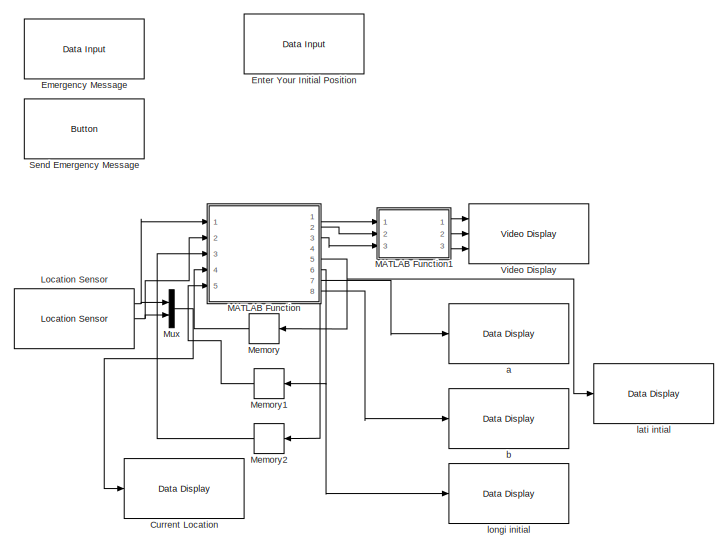
[diagram: root canvas - part 1/2, top left region]
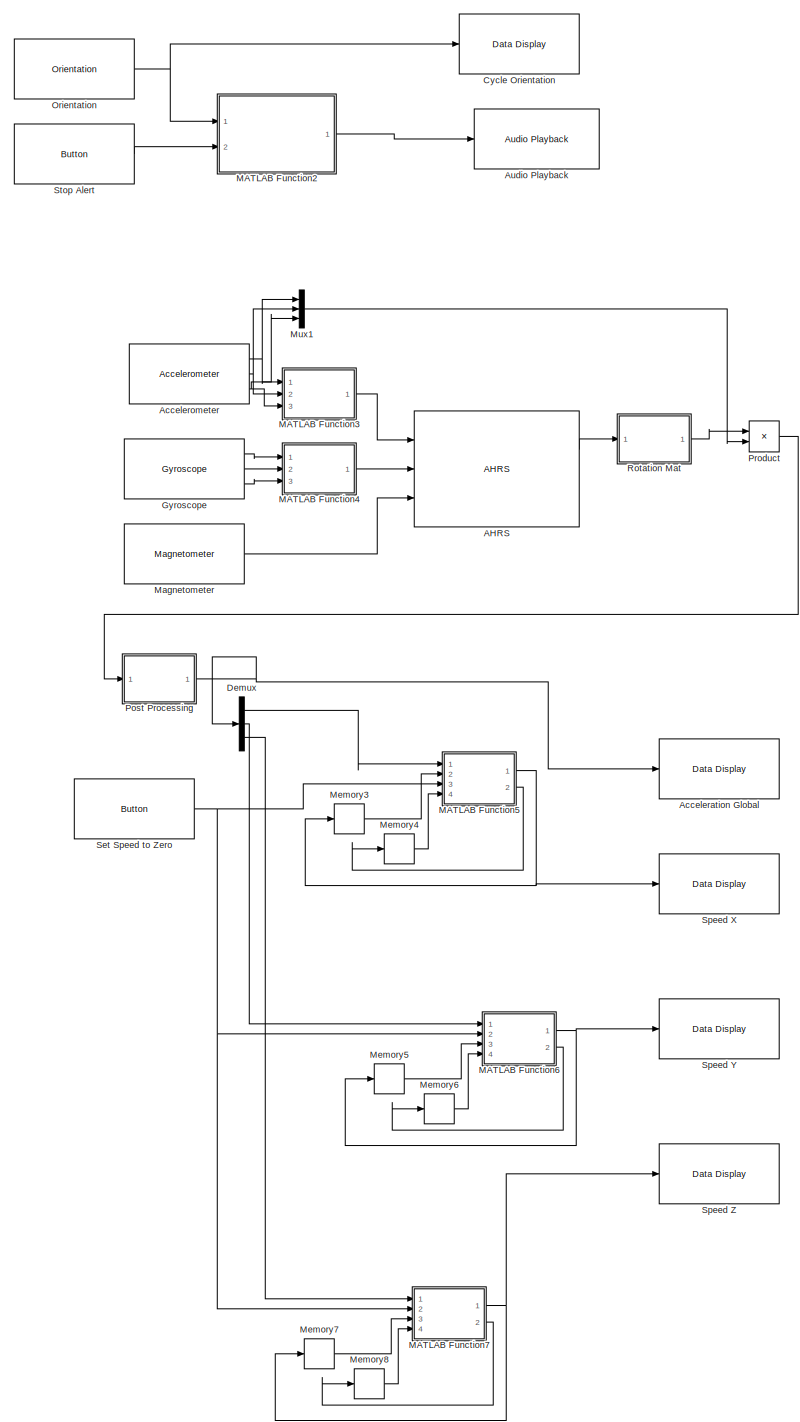
[diagram: root canvas - part 2/2, right side, full height]
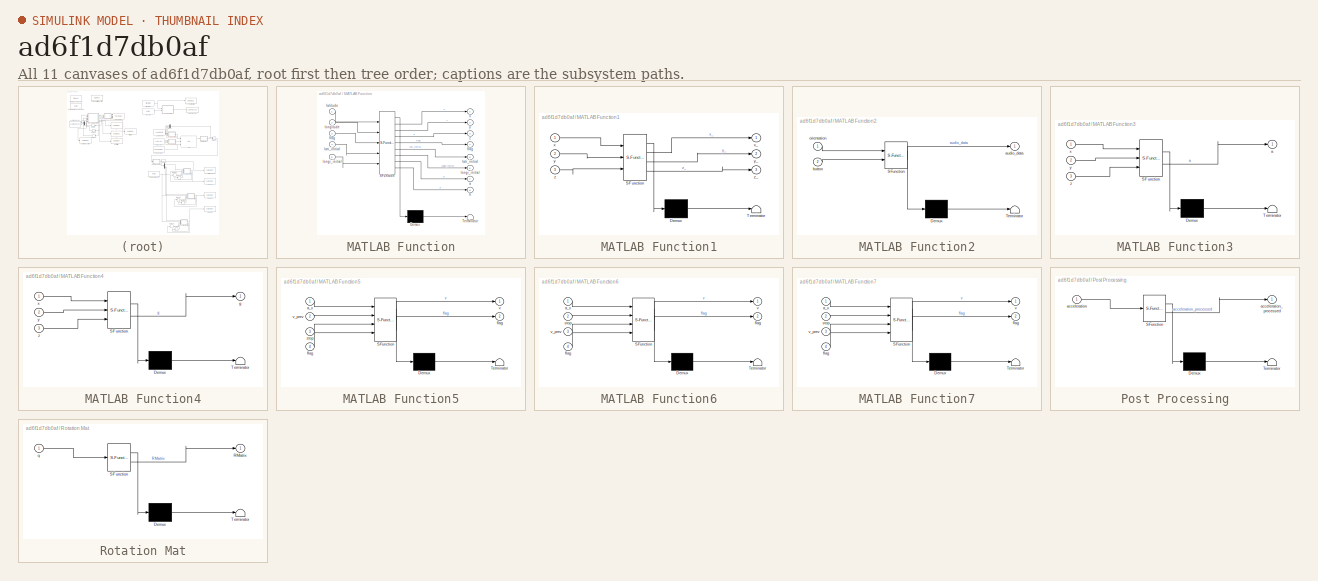
[diagram: thumbnail index - all 11 canvases of the model, root first then tree order]
MODEL slx_ad6f1d7db0af
KIND model
CONFIG AbsTol = auto
CONFIG EnableMultiTasking = off
CONFIG FixedStep = auto
CONFIG MaxStep = auto
CONFIG MinStep = auto
CONFIG RelTol = 1e-3
CONFIG SampleTimeConstraint = Unconstrained
CONFIG SolverName = VariableStepAuto
CONFIG StartTime = 0.0
CONFIG StopTime = 10.0
BLOCK [Reference] AHRS  REF=mspfiltlib/AHRS
  Ports = [3, 2]
  SourceBlock = mspfiltlib/AHRS
  SourceProductBaseCode = NV,TF,NV
  SourceType = fusion.simulink.ahrsfilter
BLOCK [Reference] Acceleration Global  REF=androiduilib/Data Display
  Ports = [1]
  SourceBlock = androiduilib/Data Display
  SourceProductBaseCode = ANDROID
  SourceType = codertarget.internal.androidDataDisplay
BLOCK [Reference] Accelerometer  REF=androidsensorlib/Accelerometer
  Ports = [0, 3]
  SourceBlock = androidsensorlib/Accelerometer
  SourceProductBaseCode = ANDROID
  SourceType = codertarget.internal.androidAccelerometer
BLOCK [Reference] Audio Playback  REF=androidaudiovideolib/Audio Playback
  Ports = [1]
  SourceBlock = androidaudiovideolib/Audio Playback
  SourceProductBaseCode = ANDROID
  SourceType = codertarget.internal.androidAudioPlayback
BLOCK [Reference] Current Location  REF=androiduilib/Data Display
  Ports = [1]
  SourceBlock = androiduilib/Data Display
  SourceProductBaseCode = ANDROID
  SourceType = codertarget.internal.androidDataDisplay
BLOCK [Reference] Cycle Orientation   REF=androiduilib/Data Display
  Ports = [1]
  SourceBlock = androiduilib/Data Display
  SourceProductBaseCode = ANDROID
  SourceType = codertarget.internal.androidDataDisplay
BLOCK [Demux] Demux
  Outputs = 3
  Ports = [1, 3]
BLOCK [Reference] Emergency Message  REF=androiduilib/Data Input
  Ports = [0, 1]
  SourceBlock = androiduilib/Data Input
  SourceProductBaseCode = ANDROID
  SourceType = codertarget.internal.androidDataInput
BLOCK [Reference] Enter Your Initial Position  REF=androiduilib/Data Input
  Ports = [0, 1]
  SourceBlock = androiduilib/Data Input
  SourceProductBaseCode = ANDROID
  SourceType = codertarget.internal.androidDataInput
BLOCK [Reference] Gyroscope  REF=androidsensorlib/Gyroscope
  Ports = [0, 3]
  SourceBlock = androidsensorlib/Gyroscope
  SourceProductBaseCode = ANDROID
  SourceType = codertarget.internal.androidGyroscope
BLOCK [Reference] Location Sensor  REF=androidsensorlib/Location Sensor
  Ports = [0, 3]
  SourceBlock = androidsensorlib/Location Sensor
  SourceProductBaseCode = ANDROID
  SourceType = codertarget.internal.androidLocation
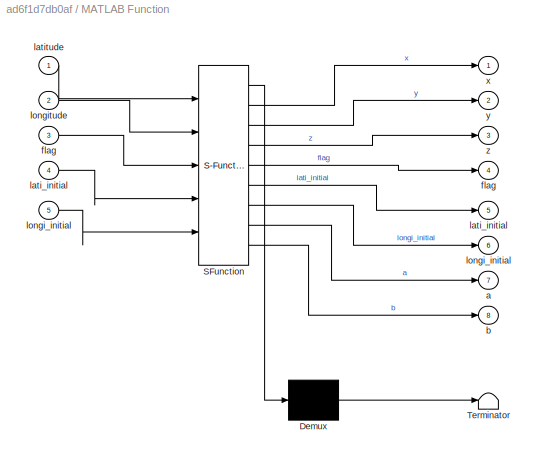
BLOCK [SubSystem] MATLAB Function
  ErrorFcn = Stateflow.Translate.translate
  PermitHierarchicalResolution = ExplicitOnly
  Ports = [5, 8]
  RequestExecContextInheritance = off
  SFBlockType = MATLAB Function
  TreatAsAtomicUnit = on
BLOCK [Demux] MATLAB Function/ Demux 
  Outputs = 1
  Ports = [1, 1]
BLOCK [S-Function] MATLAB Function/ SFunction 
  EnableBusSupport = on
  FunctionName = sf_sfun
  PortCounts = [5 9]
  Ports = [5, 9]
  SFcnIsStateOwnerBlock = off
  SFunctionDeploymentMode = off
  Tag = Stateflow S-Function 2
BLOCK [Terminator] MATLAB Function/ Terminator 
BLOCK [Outport] MATLAB Function/a
  Port = 7
BLOCK [Outport] MATLAB Function/b
  Port = 8
BLOCK [Outport] MATLAB Function/flag
  Port = 4
BLOCK [Inport] MATLAB Function/flag 
  Port = 3
BLOCK [Outport] MATLAB Function/lati_initial
  Port = 5
BLOCK [Inport] MATLAB Function/lati_initial 
  Port = 4
BLOCK [Inport] MATLAB Function/latitude
BLOCK [Outport] MATLAB Function/longi_initial
  Port = 6
BLOCK [Inport] MATLAB Function/longi_initial 
  Port = 5
BLOCK [Inport] MATLAB Function/longitude
  Port = 2
BLOCK [Outport] MATLAB Function/x
BLOCK [Outport] MATLAB Function/y
  Port = 2
BLOCK [Outport] MATLAB Function/z
  Port = 3
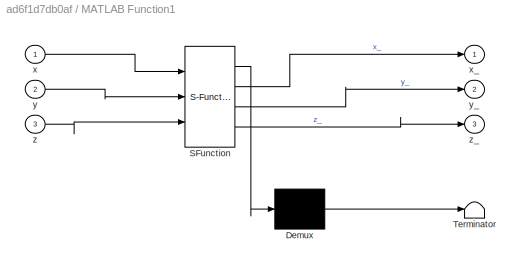
BLOCK [SubSystem] MATLAB Function1
  ErrorFcn = Stateflow.Translate.translate
  PermitHierarchicalResolution = ExplicitOnly
  Ports = [3, 3]
  RequestExecContextInheritance = off
  SFBlockType = MATLAB Function
  TreatAsAtomicUnit = on
BLOCK [Demux] MATLAB Function1/ Demux 
  Outputs = 1
  Ports = [1, 1]
BLOCK [S-Function] MATLAB Function1/ SFunction 
  EnableBusSupport = on
  FunctionName = sf_sfun
  PortCounts = [3 4]
  Ports = [3, 4]
  SFcnIsStateOwnerBlock = off
  SFunctionDeploymentMode = off
  Tag = Stateflow S-Function 1
BLOCK [Terminator] MATLAB Function1/ Terminator 
BLOCK [Inport] MATLAB Function1/x
BLOCK [Outport] MATLAB Function1/x_
BLOCK [Inport] MATLAB Function1/y
  Port = 2
BLOCK [Outport] MATLAB Function1/y_
  Port = 2
BLOCK [Inport] MATLAB Function1/z
  Port = 3
BLOCK [Outport] MATLAB Function1/z_
  Port = 3
BLOCK [SubSystem] MATLAB Function2
  ErrorFcn = Stateflow.Translate.translate
  PermitHierarchicalResolution = ExplicitOnly
  Ports = [2, 1]
  RequestExecContextInheritance = off
  SFBlockType = MATLAB Function
  TreatAsAtomicUnit = on
BLOCK [Demux] MATLAB Function2/ Demux 
  Outputs = 1
  Ports = [1, 1]
BLOCK [S-Function] MATLAB Function2/ SFunction 
  EnableBusSupport = on
  FunctionName = sf_sfun
  PortCounts = [2 2]
  Ports = [2, 2]
  SFcnIsStateOwnerBlock = off
  SFunctionDeploymentMode = off
  Tag = Stateflow S-Function 3
BLOCK [Terminator] MATLAB Function2/ Terminator 
BLOCK [Outport] MATLAB Function2/audio_data
BLOCK [Inport] MATLAB Function2/button
  Port = 2
BLOCK [Inport] MATLAB Function2/orientation
BLOCK [SubSystem] MATLAB Function3
  ErrorFcn = Stateflow.Translate.translate
  PermitHierarchicalResolution = ExplicitOnly
  Ports = [3, 1]
  RequestExecContextInheritance = off
  SFBlockType = MATLAB Function
  TreatAsAtomicUnit = on
BLOCK [Demux] MATLAB Function3/ Demux 
  Outputs = 1
  Ports = [1, 1]
BLOCK [S-Function] MATLAB Function3/ SFunction 
  EnableBusSupport = on
  FunctionName = sf_sfun
  PortCounts = [3 2]
  Ports = [3, 2]
  SFcnIsStateOwnerBlock = off
  SFunctionDeploymentMode = off
  Tag = Stateflow S-Function 4
BLOCK [Terminator] MATLAB Function3/ Terminator 
BLOCK [Outport] MATLAB Function3/a
BLOCK [Inport] MATLAB Function3/x
BLOCK [Inport] MATLAB Function3/y
  Port = 2
BLOCK [Inport] MATLAB Function3/z
  Port = 3
BLOCK [SubSystem] MATLAB Function4
  ErrorFcn = Stateflow.Translate.translate
  PermitHierarchicalResolution = ExplicitOnly
  Ports = [3, 1]
  RequestExecContextInheritance = off
  SFBlockType = MATLAB Function
  TreatAsAtomicUnit = on
BLOCK [Demux] MATLAB Function4/ Demux 
  Outputs = 1
  Ports = [1, 1]
BLOCK [S-Function] MATLAB Function4/ SFunction 
  EnableBusSupport = on
  FunctionName = sf_sfun
  PortCounts = [3 2]
  Ports = [3, 2]
  SFcnIsStateOwnerBlock = off
  SFunctionDeploymentMode = off
  Tag = Stateflow S-Function 5
BLOCK [Terminator] MATLAB Function4/ Terminator 
BLOCK [Outport] MATLAB Function4/g
BLOCK [Inport] MATLAB Function4/x
BLOCK [Inport] MATLAB Function4/y
  Port = 2
BLOCK [Inport] MATLAB Function4/z
  Port = 3
BLOCK [SubSystem] MATLAB Function5
  ErrorFcn = Stateflow.Translate.translate
  PermitHierarchicalResolution = ExplicitOnly
  Ports = [4, 2]
  RequestExecContextInheritance = off
  SFBlockType = MATLAB Function
  TreatAsAtomicUnit = on
BLOCK [Demux] MATLAB Function5/ Demux 
  Outputs = 1
  Ports = [1, 1]
BLOCK [S-Function] MATLAB Function5/ SFunction 
  EnableBusSupport = on
  FunctionName = sf_sfun
  PortCounts = [4 3]
  Ports = [4, 3]
  SFcnIsStateOwnerBlock = off
  SFunctionDeploymentMode = off
  Tag = Stateflow S-Function 6
BLOCK [Terminator] MATLAB Function5/ Terminator 
BLOCK [Inport] MATLAB Function5/a_x
BLOCK [Outport] MATLAB Function5/flag
  Port = 2
BLOCK [Inport] MATLAB Function5/flag 
  Port = 4
BLOCK [Inport] MATLAB Function5/stop
  Port = 3
BLOCK [Outport] MATLAB Function5/v
BLOCK [Inport] MATLAB Function5/v_prev
  Port = 2
BLOCK [SubSystem] MATLAB Function6
  ErrorFcn = Stateflow.Translate.translate
  PermitHierarchicalResolution = ExplicitOnly
  Ports = [4, 2]
  RequestExecContextInheritance = off
  SFBlockType = MATLAB Function
  TreatAsAtomicUnit = on
BLOCK [Demux] MATLAB Function6/ Demux 
  Outputs = 1
  Ports = [1, 1]
BLOCK [S-Function] MATLAB Function6/ SFunction 
  EnableBusSupport = on
  FunctionName = sf_sfun
  PortCounts = [4 3]
  Ports = [4, 3]
  SFcnIsStateOwnerBlock = off
  SFunctionDeploymentMode = off
  Tag = Stateflow S-Function 7
BLOCK [Terminator] MATLAB Function6/ Terminator 
BLOCK [Inport] MATLAB Function6/a_x
BLOCK [Outport] MATLAB Function6/flag
  Port = 2
BLOCK [Inport] MATLAB Function6/flag 
  Port = 4
BLOCK [Inport] MATLAB Function6/stop
  Port = 2
BLOCK [Outport] MATLAB Function6/v
BLOCK [Inport] MATLAB Function6/v_prev
  Port = 3
BLOCK [SubSystem] MATLAB Function7
  ErrorFcn = Stateflow.Translate.translate
  PermitHierarchicalResolution = ExplicitOnly
  Ports = [4, 2]
  RequestExecContextInheritance = off
  SFBlockType = MATLAB Function
  TreatAsAtomicUnit = on
BLOCK [Demux] MATLAB Function7/ Demux 
  Outputs = 1
  Ports = [1, 1]
BLOCK [S-Function] MATLAB Function7/ SFunction 
  EnableBusSupport = on
  FunctionName = sf_sfun
  PortCounts = [4 3]
  Ports = [4, 3]
  SFcnIsStateOwnerBlock = off
  SFunctionDeploymentMode = off
  Tag = Stateflow S-Function 8
BLOCK [Terminator] MATLAB Function7/ Terminator 
BLOCK [Inport] MATLAB Function7/a_x
BLOCK [Outport] MATLAB Function7/flag
  Port = 2
BLOCK [Inport] MATLAB Function7/flag 
  Port = 4
BLOCK [Inport] MATLAB Function7/stop
  Port = 2
BLOCK [Outport] MATLAB Function7/v
BLOCK [Inport] MATLAB Function7/v_prev
  Port = 3
BLOCK [Reference] Magnetometer  REF=androidsensorlib/Magnetometer
  Ports = [0, 1]
  SourceBlock = androidsensorlib/Magnetometer
  SourceProductBaseCode = ANDROID
  SourceType = codertarget.internal.androidMagnetometer
BLOCK [Memory] Memory
BLOCK [Memory] Memory1
BLOCK [Memory] Memory2
BLOCK [Memory] Memory3
BLOCK [Memory] Memory4
BLOCK [Memory] Memory5
BLOCK [Memory] Memory6
BLOCK [Memory] Memory7
BLOCK [Memory] Memory8
BLOCK [Mux] Mux
  DisplayOption = bar
  Inputs = 2
  Ports = [2, 1]
BLOCK [Mux] Mux1
  DisplayOption = bar
  Inputs = 3
  Ports = [3, 1]
BLOCK [Reference] Orientation  REF=androidsensorlib/Orientation
  Ports = [0, 1]
  SourceBlock = androidsensorlib/Orientation
  SourceProductBaseCode = ANDROID
  SourceType = codertarget.internal.androidOrientation
BLOCK [SubSystem] Post Processing
  ErrorFcn = Stateflow.Translate.translate
  PermitHierarchicalResolution = ExplicitOnly
  Ports = [1, 1]
  RequestExecContextInheritance = off
  SFBlockType = MATLAB Function
  TreatAsAtomicUnit = on
BLOCK [Demux] Post Processing/ Demux 
  Outputs = 1
  Ports = [1, 1]
BLOCK [S-Function] Post Processing/ SFunction 
  EnableBusSupport = on
  FunctionName = sf_sfun
  PortCounts = [1 2]
  Ports = [1, 2]
  SFcnIsStateOwnerBlock = off
  SFunctionDeploymentMode = off
  Tag = Stateflow S-Function 9
BLOCK [Terminator] Post Processing/ Terminator 
BLOCK [Inport] Post Processing/acceleration
BLOCK [Outport] Post Processing/acceleration_processed
BLOCK [Product] Product
  Multiplication = Matrix(*)
  Ports = [2, 1]
BLOCK [SubSystem] Rotation Mat
  ErrorFcn = Stateflow.Translate.translate
  PermitHierarchicalResolution = ExplicitOnly
  Ports = [1, 1]
  RequestExecContextInheritance = off
  SFBlockType = MATLAB Function
  TreatAsAtomicUnit = on
BLOCK [Demux] Rotation Mat/ Demux 
  Outputs = 1
  Ports = [1, 1]
BLOCK [S-Function] Rotation Mat/ SFunction 
  EnableBusSupport = on
  FunctionName = sf_sfun
  PortCounts = [1 2]
  Ports = [1, 2]
  SFcnIsStateOwnerBlock = off
  SFunctionDeploymentMode = off
  Tag = Stateflow S-Function 10
BLOCK [Terminator] Rotation Mat/ Terminator 
BLOCK [Outport] Rotation Mat/RMatrix
BLOCK [Inport] Rotation Mat/q
BLOCK [Reference] Send Emergency Message  REF=androiduilib/Button
  Ports = [0, 1]
  SourceBlock = androiduilib/Button
  SourceProductBaseCode = ANDROID
  SourceType = codertarget.internal.androidButton
BLOCK [Reference] Set Speed to Zero  REF=androiduilib/Button
  Ports = [0, 1]
  SourceBlock = androiduilib/Button
  SourceProductBaseCode = ANDROID
  SourceType = codertarget.internal.androidButton
BLOCK [Reference] Speed X  REF=androiduilib/Data Display
  Ports = [1]
  SourceBlock = androiduilib/Data Display
  SourceProductBaseCode = ANDROID
  SourceType = codertarget.internal.androidDataDisplay
BLOCK [Reference] Speed Y  REF=androiduilib/Data Display
  Ports = [1]
  SourceBlock = androiduilib/Data Display
  SourceProductBaseCode = ANDROID
  SourceType = codertarget.internal.androidDataDisplay
BLOCK [Reference] Speed Z  REF=androiduilib/Data Display
  Ports = [1]
  SourceBlock = androiduilib/Data Display
  SourceProductBaseCode = ANDROID
  SourceType = codertarget.internal.androidDataDisplay
BLOCK [Reference] Stop Alert  REF=androiduilib/Button
  Ports = [0, 1]
  SourceBlock = androiduilib/Button
  SourceProductBaseCode = ANDROID
  SourceType = codertarget.internal.androidButton
BLOCK [Reference] Video Display  REF=androidaudiovideolib/Video Display
  Ports = [3]
  SourceBlock = androidaudiovideolib/Video Display
  SourceProductBaseCode = ANDROID
  SourceType = codertarget.internal.androidVideoDisplay
BLOCK [Reference] a  REF=androiduilib/Data Display
  Ports = [1]
  SourceBlock = androiduilib/Data Display
  SourceProductBaseCode = ANDROID
  SourceType = codertarget.internal.androidDataDisplay
BLOCK [Reference] b  REF=androiduilib/Data Display
  Ports = [1]
  SourceBlock = androiduilib/Data Display
  SourceProductBaseCode = ANDROID
  SourceType = codertarget.internal.androidDataDisplay
BLOCK [Reference] lati intial  REF=androiduilib/Data Display
  Ports = [1]
  SourceBlock = androiduilib/Data Display
  SourceProductBaseCode = ANDROID
  SourceType = codertarget.internal.androidDataDisplay
BLOCK [Reference] longi initial  REF=androiduilib/Data Display
  Ports = [1]
  SourceBlock = androiduilib/Data Display
  SourceProductBaseCode = ANDROID
  SourceType = codertarget.internal.androidDataDisplay
LINE AHRS:1 -> Rotation Mat:1
NET Accelerometer:1 -> MATLAB Function3:1, Mux1:1
NET Accelerometer:2 -> MATLAB Function3:2, Mux1:2
NET Accelerometer:3 -> MATLAB Function3:3, Mux1:3
LINE Demux:1 -> MATLAB Function5:1
LINE Demux:2 -> MATLAB Function6:1
LINE Demux:3 -> MATLAB Function7:1
LINE Gyroscope:1 -> MATLAB Function4:1
LINE Gyroscope:2 -> MATLAB Function4:2
LINE Gyroscope:3 -> MATLAB Function4:3
NET Location Sensor:1 -> MATLAB Function:1, Mux:1
NET Location Sensor:2 -> MATLAB Function:2, Mux:2
LINE MATLAB Function1:1 -> Video Display:1
LINE MATLAB Function1:2 -> Video Display:2
LINE MATLAB Function1:3 -> Video Display:3
LINE MATLAB Function2:1 -> Audio Playback:1
LINE MATLAB Function3:1 -> AHRS:1
LINE MATLAB Function4:1 -> AHRS:2
NET MATLAB Function5:1 -> Memory3:1, Speed X:1
LINE MATLAB Function5:2 -> Memory4:1
NET MATLAB Function6:1 -> Memory5:1, Speed Y:1
LINE MATLAB Function6:2 -> Memory6:1
NET MATLAB Function7:1 -> Memory7:1, Speed Z:1
LINE MATLAB Function7:2 -> Memory8:1
LINE MATLAB Function:1 -> MATLAB Function1:1
LINE MATLAB Function:2 -> MATLAB Function1:2
LINE MATLAB Function:3 -> MATLAB Function1:3
LINE MATLAB Function:4 -> Memory2:1
NET MATLAB Function:5 -> Memory:1, lati intial:1
NET MATLAB Function:6 -> Memory1:1, longi initial:1
LINE MATLAB Function:7 -> a:1
LINE MATLAB Function:8 -> b:1
LINE Magnetometer:1 -> AHRS:3
LINE Memory1:1 -> MATLAB Function:5
LINE Memory2:1 -> MATLAB Function:3
LINE Memory3:1 -> MATLAB Function5:2
LINE Memory4:1 -> MATLAB Function5:4
LINE Memory5:1 -> MATLAB Function6:3
LINE Memory6:1 -> MATLAB Function6:4
LINE Memory7:1 -> MATLAB Function7:3
LINE Memory8:1 -> MATLAB Function7:4
LINE Memory:1 -> MATLAB Function:4
LINE Mux1:1 -> Product:2
LINE Mux:1 -> Current Location:1
NET Orientation:1 -> Cycle Orientation :1, MATLAB Function2:1
NET Post Processing:1 -> Acceleration Global:1, Demux:1
LINE Product:1 -> Post Processing:1
LINE Rotation Mat:1 -> Product:1
NET Set Speed to Zero:1 -> MATLAB Function5:3, MATLAB Function6:2, MATLAB Function7:2
LINE Stop Alert:1 -> MATLAB Function2:2
note: NET lines group one-source signal fan-out (src -> all destinations, sorted); 1:1 wires keep LINE
CHART MATLAB Function7 states=1 transitions=1
  STATE_LABEL 'eML_blk_kernel()'
  STATE_LABEL 'SCRIPT:\nfunction [v,flag] = fcn(a_x,stop, v_prev,flag)\nif (stop)\n    flag = 0;\nend\nif (flag == 0)\nv_prev = 0;\nflag = 1;\nend\ndt = 0.5;\nv_change = a_x*dt;\nv = v_prev + v_change;\n'
CHART Post Processing states=1 transitions=1
  STATE_LABEL 'eML_blk_kernel()'
  STATE_LABEL 'SCRIPT:\nfunction acceleration_processed = fcn(acceleration)\n\nx = round(acceleration(1));\ny = round(acceleration(2));\nz = round(acceleration(3))-10;\nif abs(x)<2\n    x = single(0);\nend\nif abs(y)<2\n    y = single(0);\nend\nif abs(z)<2\n    z = single(0);\nend\n\nacceleration_processed = [double(x),double(y),double(z)];'
CHART Rotation Mat states=1 transitions=1
  STATE_LABEL 'eML_blk_kernel()'
  STATE_LABEL 'SCRIPT:\nfunction RMatrix = fcn(q)\nfunction R = quaternionToRotationMatrix(q)\n    q0 = q(1);\n    q1 = q(2);\n    q2 = q(3);\n    q3 = q(4);\n\n    R = [1 - 2*q2^2 - 2*q3^2, 2*q1*q2 - 2*q3*q0, 2*q1*q3 + 2*q2*q0;\n         2*q1*q2 + 2*q3*q0, 1 - 2*q1^2 - 2*q3^2, 2*q2*q3 - 2*q1*q0;\n         2*q1*q3 - 2*q2*q0, 2*q2*q3 + 2*q1*q0, 1 - 2*q1^2 - 2*q2^2];\nend\n\n% Example usage:\n% Replace the following line with y...<+67ch>'
CHART MATLAB Function1 states=1 transitions=1
  STATE_LABEL 'eML_blk_kernel()'
  STATE_LABEL 'SCRIPT:\nfunction [x_,y_,z_] = fcn(x, y, z)\nx_ = uint8(x);\ny_ = uint8(y);\nz_ = uint8(z);'
CHART MATLAB Function states=1 transitions=1
  STATE_LABEL 'eML_blk_kernel()'
  STATE_LABEL 'SCRIPT:\nfunction [x,y,z,flag,lati_initial,longi_initial,a,b] = fcn(latitude, longitude,flag,lati_initial,longi_initial)\n\nif flag == 0\nlati_initial = latitude;\nlongi_initial = longitude;\nflag = 1;\nend\n% Define image size\nimageSize = 1000;\n\n% Create a blank black image\nx = (255 * ones(imageSize));\ny =(99 * ones(imageSize));\nz = (51 * ones(imageSize));\n\n% Define circle parameters\ncircleCenter = [500,...<+2198ch>'
CHART MATLAB Function2 states=1 transitions=1
  STATE_LABEL 'eML_blk_kernel()'
  STATE_LABEL 'SCRIPT:\nfunction audio_data = generateAudioData(orientation, button)\n    % Sample audio data generation\n    Fs = 4410; % Sampling frequency (Hz)\n    t = 0:1/Fs:1-1/Fs; % Time vector (1 second)\n    f1 = 440; % Frequency of the left channel (Hz)\n    f2 = 880; % Frequency of the right channel (Hz)\n    if ((abs(orientation(1)) > 70  || abs(orientation(2)) > 70) && not(button))\n        audio_data = [in...<+175ch>'
CHART MATLAB Function3 states=1 transitions=1
  STATE_LABEL 'eML_blk_kernel()'
  STATE_LABEL 'SCRIPT:\nfunction a = fcn(x,y,z)\n\na = [x,y,z];\n'
CHART MATLAB Function4 states=1 transitions=1
  STATE_LABEL 'eML_blk_kernel()'
  STATE_LABEL 'SCRIPT:\nfunction g = fcn(x,y,z)\n\ng = [x,y,z];\n'
CHART MATLAB Function5 states=1 transitions=1
  STATE_LABEL 'eML_blk_kernel()'
  STATE_LABEL 'SCRIPT:\nfunction [v,flag] = fcn(a_x,v_prev,stop, flag)\nif (stop)\n    flag = 0;\nend\nif (flag == 0)\nv_prev = 0;\nflag = 1;\nend\ndt = 0.5;\nv_change = a_x*dt;\nv = v_prev + v_change;\n'
CHART MATLAB Function6 states=1 transitions=1
  STATE_LABEL 'eML_blk_kernel()'
  STATE_LABEL 'SCRIPT:\nfunction [v,flag] = fcn(a_x,stop, v_prev,flag)\nif (stop)\n    flag = 0;\nend\nif (flag == 0)\nv_prev = 0;\nflag = 1;\nend\ndt = 0.5;\nv_change = a_x*dt;\nv = v_prev + v_change;\n'
CHART  states=0 transitions=0
CHART  states=0 transitions=0
CHART  states=0 transitions=0
CHART  states=0 transitions=0
CHART  states=0 transitions=0
CHART  states=0 transitions=0
CHART  states=0 transitions=0
CHART  states=0 transitions=0
CHART  states=0 transitions=0
CHART  states=0 transitions=0
